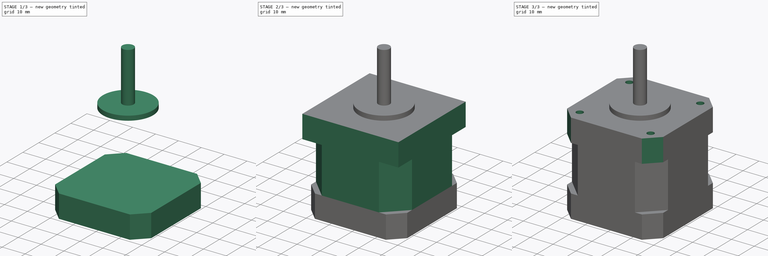
[diagram: build sequence overview — one tinted view per stage of 3, left to right]
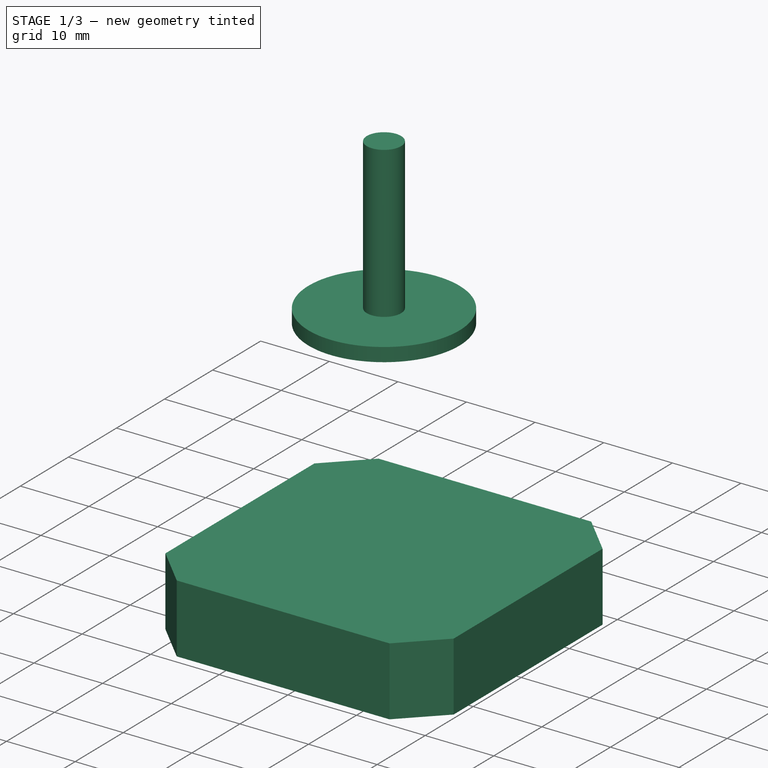
[diagram: stage 1 of 3 — iso view after this stage's code; geometry added in this stage tinted green]
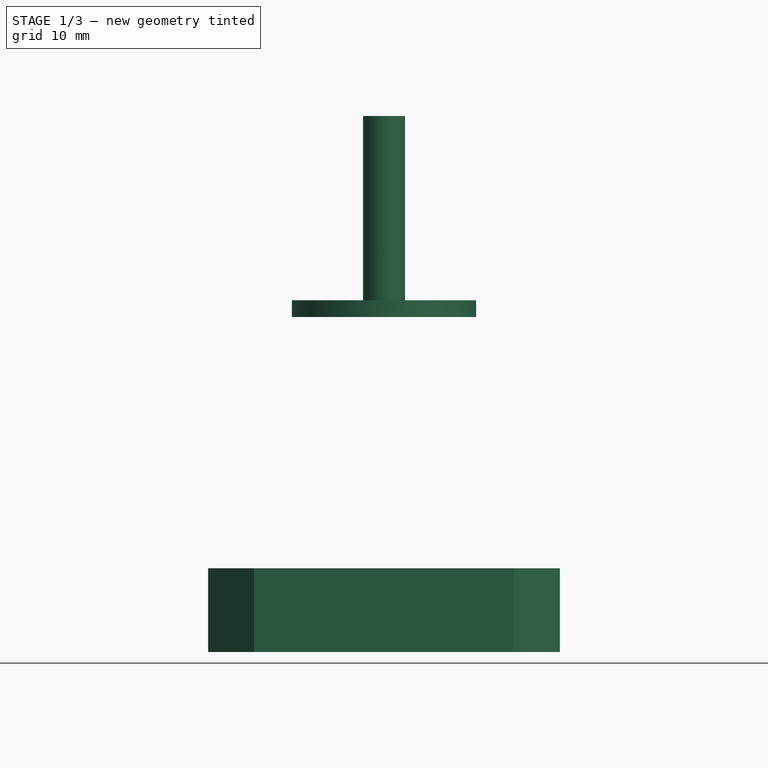
[diagram: stage 1 of 3 — front view after this stage's code; geometry added in this stage tinted green]
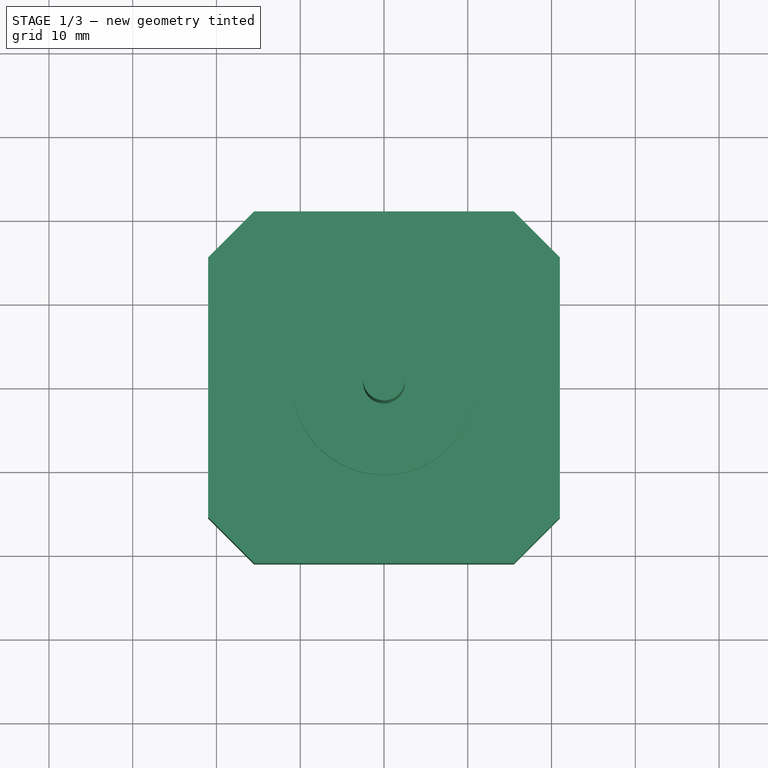
[diagram: stage 1 of 3 — top view after this stage's code; geometry added in this stage tinted green]
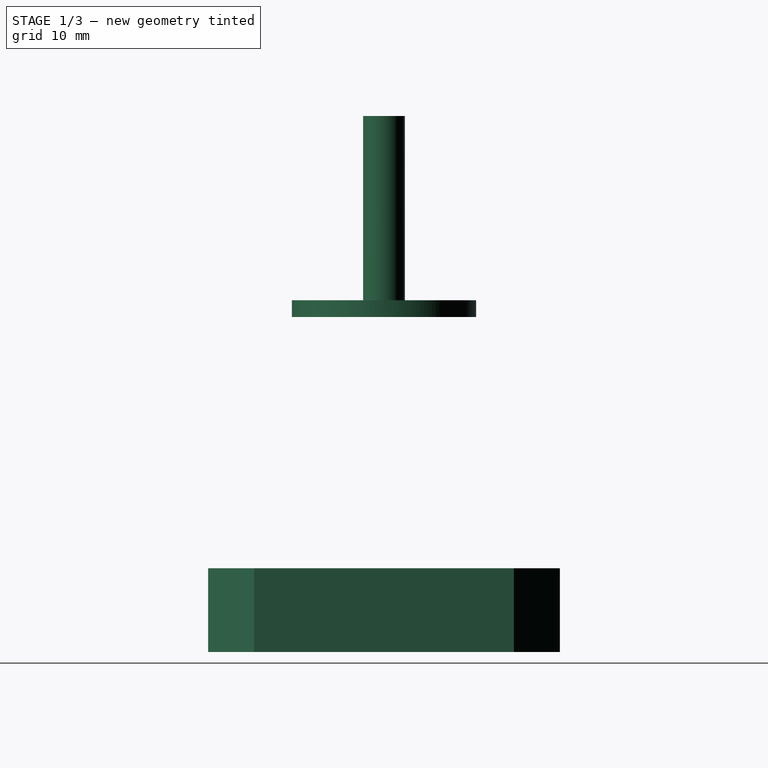
[diagram: stage 1 of 3 — right view after this stage's code; geometry added in this stage tinted green]
FCSTD DOCUMENT  (FreeCAD 1.0R39319 (Git))
Label: Nema17-Motor
License: CC-BY 3.0
LicenseURL: http://creativecommons.org/licenses/by/3.0/
objects: Sketcher::SketchObject×6, PartDesign::Pad×5, PartDesign::Body×2, PartDesign::Chamfer×1, PartDesign::Pocket×1, PartDesign::PolarPattern×1
note: 37 computed .brp shape members not serialized (recipe doc carries the construction recipe); baked Part::Feature solids carry a one-line shape summary decoded from their .brp

FEATURE [Sketcher::SketchObject] Sketch
  ArcFitTolerance = 0
  AttachmentSupport = -> [XY_Plane]
  FullyConstrained = true
  MakeInternals = false
  MapMode = 5
  sketch-geometry (8):
    g0: LineSegment StartX=-21 StartY=15.5 StartZ=0 EndX=-21 EndY=-15.5 EndZ=0
    g1: LineSegment StartX=-21 StartY=-15.5 StartZ=0 EndX=-15.5 EndY=-21 EndZ=0
    g2: LineSegment StartX=-15.5 StartY=-21 StartZ=0 EndX=15.5 EndY=-21 EndZ=0
    g3: LineSegment StartX=15.5 StartY=-21 StartZ=0 EndX=21 EndY=-15.5 EndZ=0
    g4: LineSegment StartX=21 StartY=-15.5 StartZ=0 EndX=21 EndY=15.5 EndZ=0
    g5: LineSegment StartX=21 StartY=15.5 StartZ=0 EndX=15.5 EndY=21 EndZ=0
    g6: LineSegment StartX=15.5 StartY=21 StartZ=0 EndX=-15.5 EndY=21 EndZ=0
    g7: LineSegment StartX=-15.5 StartY=21 StartZ=0 EndX=-21 EndY=15.5 EndZ=0
  constraints (22):
    c: Vertical(g0)
    c: Coincident(g0,g1)
    c: Coincident(g1,g2)
    c: Horizontal(g2)
    c: Coincident(g2,g3)
    c: Coincident(g3,g4)
    c: Vertical(g4)
    c: Coincident(g4,g5)
    c: Coincident(g5,g6)
    c: Horizontal(g6)
    c: Coincident(g6,g7)
    c: Coincident(g7,g0)
    c: Equal(g6,g2)
    c: Equal(g0,g4)
    c: Symmetric(g0,g3,g-1)
    c: Horizontal(g0,g4)
    c: Symmetric(g5,g1,g-1)
    c: Vertical(g5,g2)
    c: DistanceX(g0,g4) = 42
    c: DistanceY(g1,g6) = 42
    c: DistanceX(g6,g6) = 31
    c: DistanceY(g0,g0) = 31
FEATURE [PartDesign::Pad] Pad
  AllowMultiFace = false
  Direction = (0,0,1)
  Length = 10
  Length2 = 100
  Profile = -> Sketch
  Reversed = true
  Suppressed = false
  Type = 0
FEATURE [PartDesign::Body] Body
  AllowCompound = false
  Group = -> [Sketch,Pad,Sketch001,Pad001,Sketch002,Pad002,Chamfer,Sketch003,Pocket,PolarPattern]
  Origin = -> Origin
  Tip = -> PolarPattern
FEATURE [Sketcher::SketchObject] Sketch004
  ArcFitTolerance = 0
  FullyConstrained = true
  MakeInternals = false
  MapMode = 5
  Placement = pos=(0,0,30) rot=(0,0,1;0rad)
  sketch-geometry (1):
    g0: Circle CenterX=0 CenterY=0 CenterZ=0 NormalX=0 NormalY=0 NormalZ=1 AngleXU=0 Radius=11
  constraints (2):
    c: Coincident(g0,g-1)
    c: Diameter(g0) = 22
FEATURE [PartDesign::Pad] Pad003
  AllowMultiFace = false
  Direction = (0,0,1)
  Length = 2
  Length2 = 100
  Placement = pos=(0,0,30) rot=(0,0,1;0rad)
  Profile = -> Sketch004
  Suppressed = false
  Type = 0
FEATURE [Sketcher::SketchObject] Sketch005
  ArcFitTolerance = 0
  AttachmentSupport = -> [Pad003]
  FullyConstrained = true
  MakeInternals = false
  MapMode = 5
  Placement = pos=(0,0,32) rot=(0,0,1;0rad)
  sketch-geometry (1):
    g0: Circle CenterX=0 CenterY=0 CenterZ=0 NormalX=0 NormalY=0 NormalZ=1 AngleXU=0 Radius=2.5
  constraints (2):
    c: Coincident(g0,g-1)
    c: Diameter(g0) = 5
FEATURE [PartDesign::Pad] Pad004
  AllowMultiFace = false
  BaseFeature = -> Pad003
  Direction = (0,0,1)
  Length = 22
  Length2 = 100
  Placement = pos=(0,0,30) rot=(0,0,1;0rad)
  Profile = -> Sketch005
  Suppressed = false
  Type = 0
FEATURE [PartDesign::Body] Body001
  AllowCompound = false
  Group = -> [Sketch004,Pad003,Sketch005,Pad004]
  Origin = -> Origin001
  Tip = -> Pad004
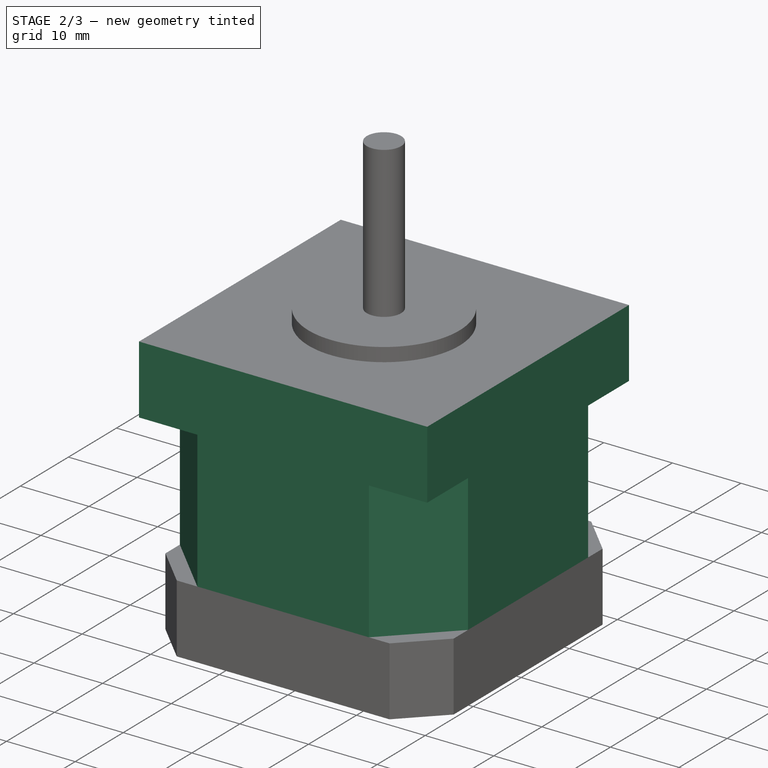
[diagram: stage 2 of 3 — iso view after this stage's code; geometry added in this stage tinted green]
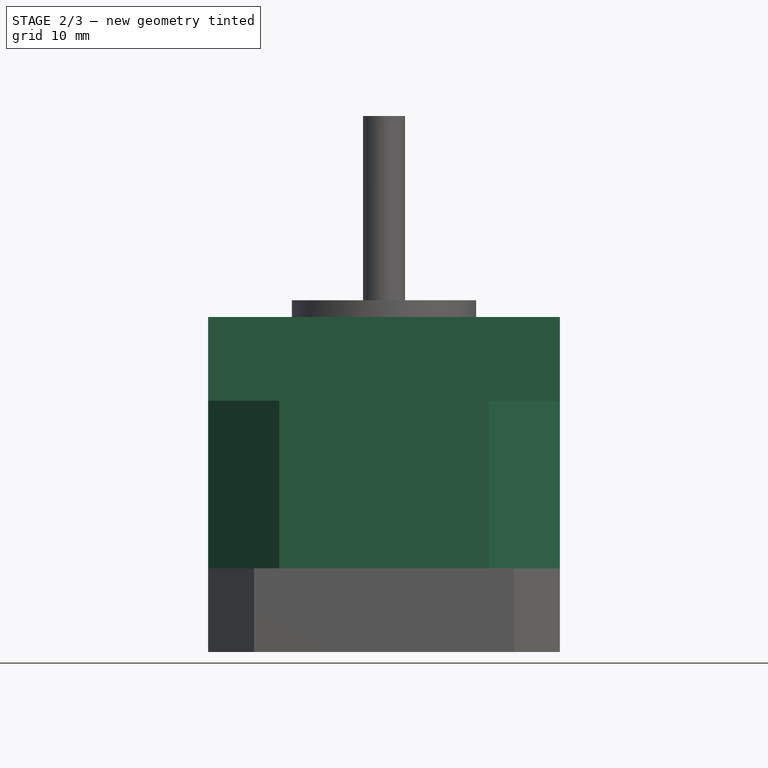
[diagram: stage 2 of 3 — front view after this stage's code; geometry added in this stage tinted green]
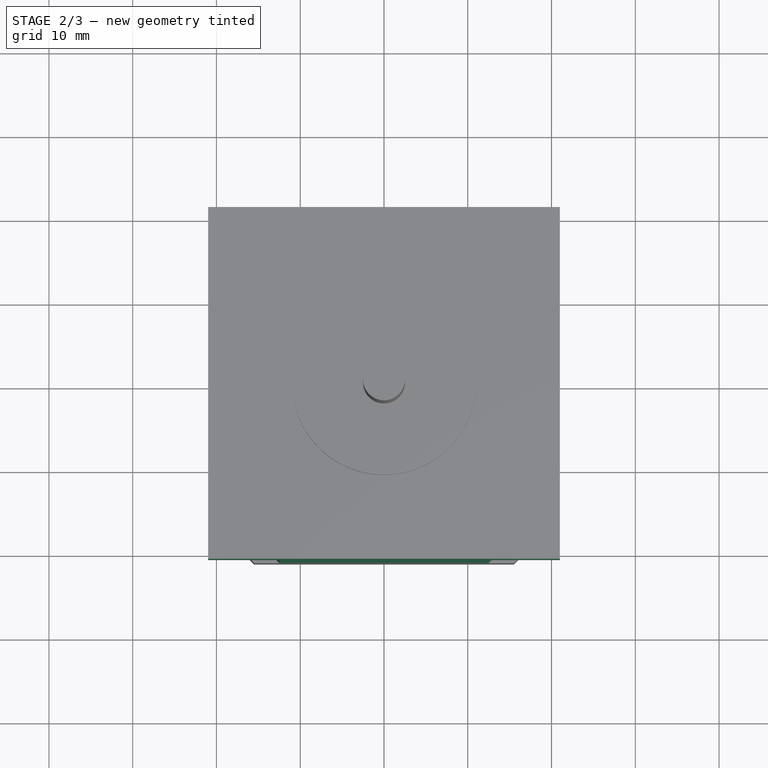
[diagram: stage 2 of 3 — top view after this stage's code; geometry added in this stage tinted green]
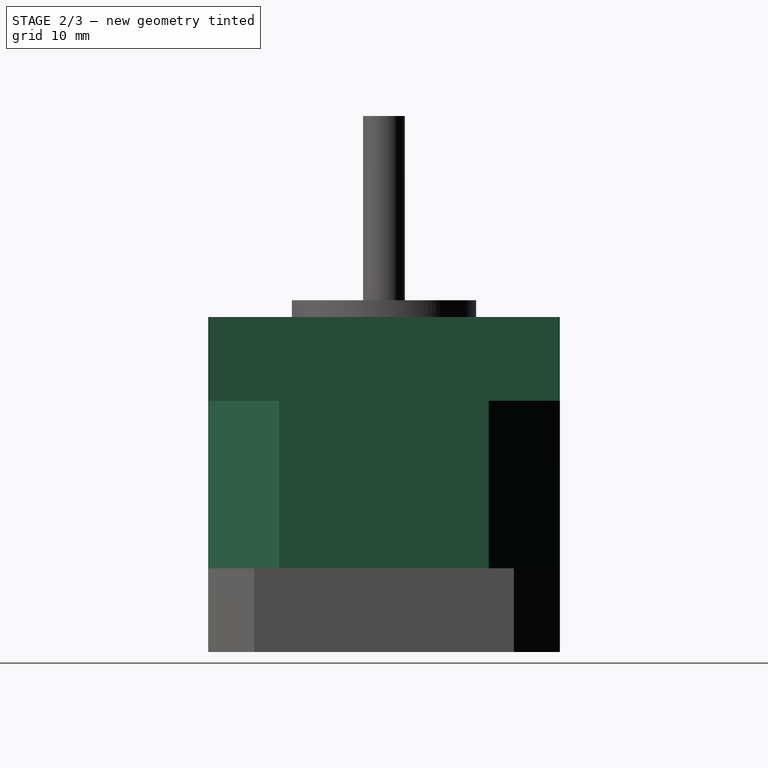
[diagram: stage 2 of 3 — right view after this stage's code; geometry added in this stage tinted green]
FEATURE [Sketcher::SketchObject] Sketch001
  ArcFitTolerance = 0
  AttachmentSupport = -> [Pad]
  FullyConstrained = true
  MakeInternals = false
  MapMode = 5
  sketch-geometry (8):
    g0: LineSegment StartX=-21 StartY=12.5 StartZ=0 EndX=-21 EndY=-12.5 EndZ=0
    g1: LineSegment StartX=-21 StartY=-12.5 StartZ=0 EndX=-12.5 EndY=-21 EndZ=0
    g2: LineSegment StartX=-12.5 StartY=-21 StartZ=0 EndX=12.5 EndY=-21 EndZ=0
    g3: LineSegment StartX=12.5 StartY=-21 StartZ=0 EndX=21 EndY=-12.5 EndZ=0
    g4: LineSegment StartX=21 StartY=-12.5 StartZ=0 EndX=21 EndY=12.5 EndZ=0
    g5: LineSegment StartX=21 StartY=12.5 StartZ=0 EndX=12.5 EndY=21 EndZ=0
    g6: LineSegment StartX=12.5 StartY=21 StartZ=0 EndX=-12.5 EndY=21 EndZ=0
    g7: LineSegment StartX=-12.5 StartY=21 StartZ=0 EndX=-21 EndY=12.5 EndZ=0
  constraints (22):
    c: Vertical(g0)
    c: Coincident(g0,g1)
    c: Coincident(g1,g2)
    c: Horizontal(g2)
    c: Coincident(g2,g3)
    c: Coincident(g3,g4)
    c: Vertical(g4)
    c: Coincident(g4,g5)
    c: Coincident(g5,g6)
    c: Coincident(g6,g7)
    c: Coincident(g7,g0)
    c: Horizontal(g6)
    c: Symmetric(g0,g4,g-1)
    c: Horizontal(g0,g4)
    c: Symmetric(g6,g2,g-1)
    c: Vertical(g1,g6)
    c: Equal(g2,g6)
    c: Equal(g0,g4)
    c: DistanceX(g0,g4) = 42
    c: DistanceY(g1,g6) = 42
    c: DistanceY(g0,g0) = 25
    c: DistanceX(g6,g6) = 25
FEATURE [PartDesign::Pad] Pad001
  AllowMultiFace = false
  BaseFeature = -> Pad
  Direction = (0,0,1)
  Length = 20
  Length2 = 100
  Profile = -> Sketch001
  Suppressed = false
  Type = 0
FEATURE [Sketcher::SketchObject] Sketch002
  ArcFitTolerance = 0
  AttachmentSupport = -> [Pad001]
  FullyConstrained = true
  MakeInternals = false
  MapMode = 5
  Placement = pos=(0,0,20) rot=(0,0,1;0rad)
  sketch-geometry (4):
    g0: LineSegment StartX=-21 StartY=21 StartZ=0 EndX=21 EndY=21 EndZ=0
    g1: LineSegment StartX=21 StartY=21 StartZ=0 EndX=21 EndY=-21 EndZ=0
    g2: LineSegment StartX=21 StartY=-21 StartZ=0 EndX=-21 EndY=-21 EndZ=0
    g3: LineSegment StartX=-21 StartY=-21 StartZ=0 EndX=-21 EndY=21 EndZ=0
  constraints (11):
    c: Coincident(g0,g1)
    c: Coincident(g1,g2)
    c: Coincident(g2,g3)
    c: Coincident(g3,g0)
    c: Horizontal(g0)
    c: Horizontal(g2)
    c: Vertical(g1)
    c: Vertical(g3)
    c: Symmetric(g0,g1,g-1)
    c: DistanceX(g0,g0) = 42
    c: DistanceY(g3,g3) = 42
FEATURE [PartDesign::Pad] Pad002
  AllowMultiFace = false
  BaseFeature = -> Pad001
  Direction = (0,0,1)
  Length = 10
  Length2 = 100
  Profile = -> Sketch002
  Suppressed = false
  Type = 0
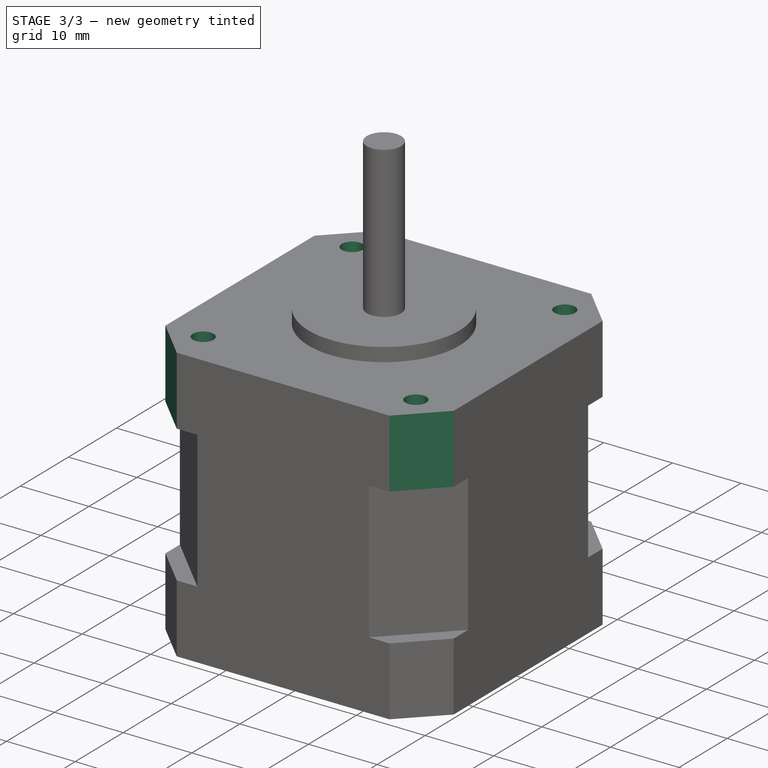
[diagram: stage 3 of 3 — iso view after this stage's code; geometry added in this stage tinted green]
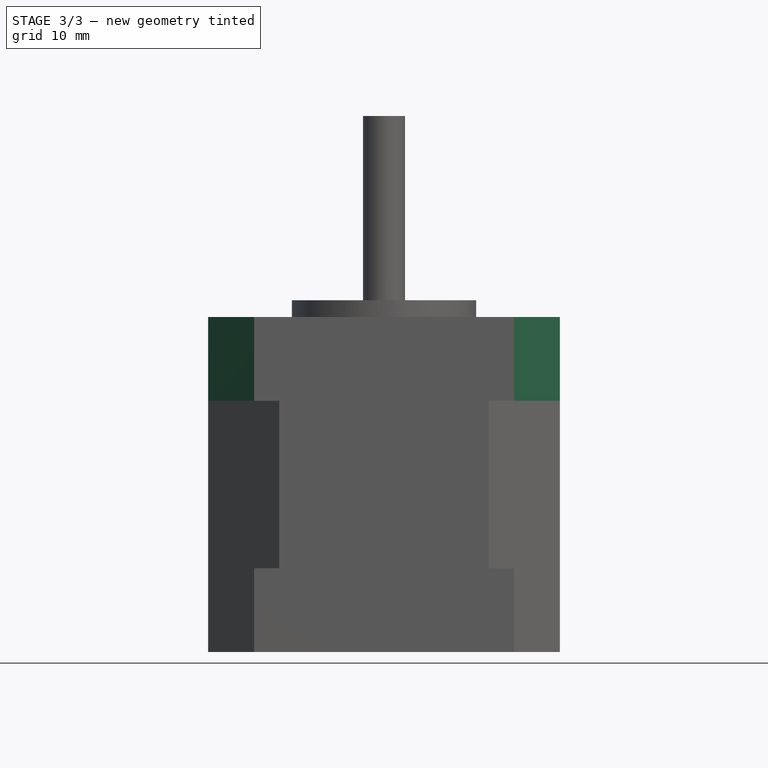
[diagram: stage 3 of 3 — front view after this stage's code; geometry added in this stage tinted green]
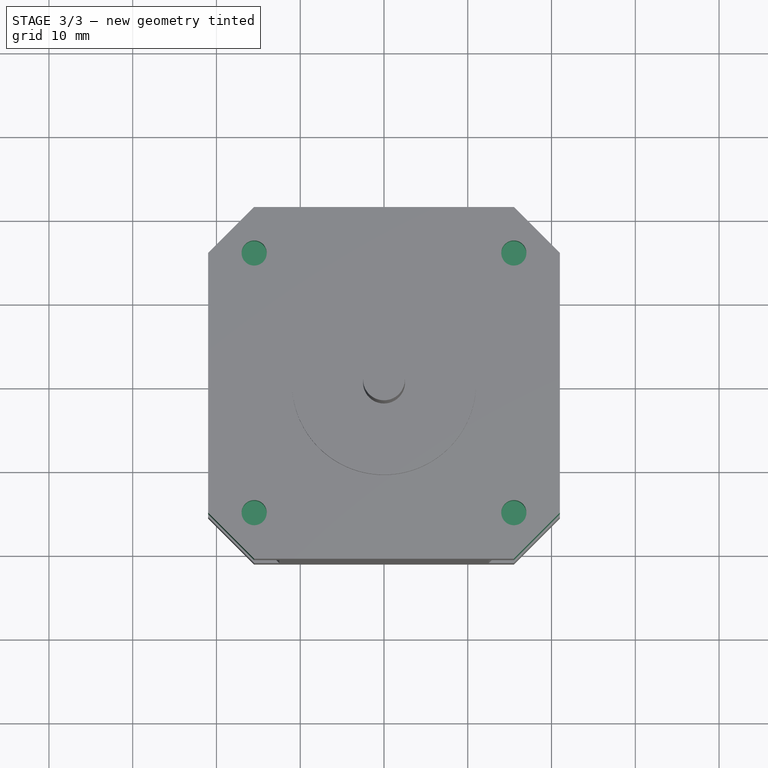
[diagram: stage 3 of 3 — top view after this stage's code; geometry added in this stage tinted green]
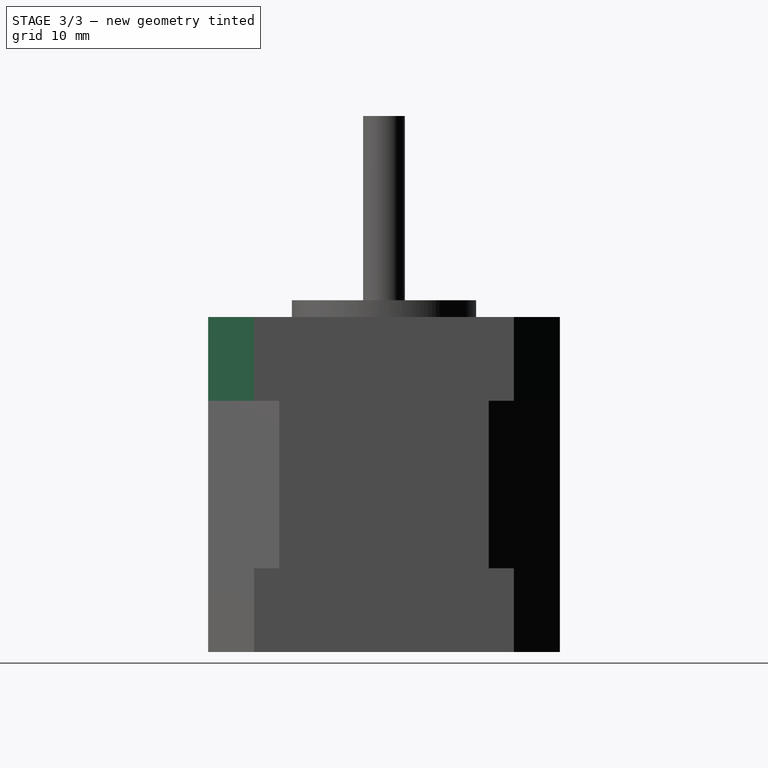
[diagram: stage 3 of 3 — right view after this stage's code; geometry added in this stage tinted green]
FEATURE [PartDesign::Chamfer] Chamfer
  Angle = 45
  Base = -> Pad002 [Edge12,Edge2,Edge1,Edge7]
  BaseFeature = -> Pad002
  ChamferType = 0
  FlipDirection = false
  Refine = true
  Size = 5.5
  Size2 = 1
  SupportTransform = false
  Suppressed = false
  UseAllEdges = false
FEATURE [Sketcher::SketchObject] Sketch003
  ArcFitTolerance = 0
  AttachmentSupport = -> [Chamfer]
  FullyConstrained = false
  MakeInternals = false
  MapMode = 5
  Placement = pos=(0,0,30) rot=(0,0,1;0rad)
  sketch-geometry (1):
    g0: Circle CenterX=15.5 CenterY=15.5 CenterZ=0 NormalX=0 NormalY=0 NormalZ=1 AngleXU=0 Radius=1.5
  constraints (3):
    c: Diameter(g0) = 3
    c: DistanceX(g-1,g0) = 15.5
    c: DistanceY(g0) = 15.5
FEATURE [PartDesign::Pocket] Pocket
  AllowMultiFace = false
  BaseFeature = -> Chamfer
  Direction = (1,1,1)
  Length = 5
  Length2 = 100
  Profile = -> Sketch003
  Suppressed = false
  Type = 0
FEATURE [PartDesign::PolarPattern] PolarPattern
  Angle = 360
  Axis = -> Sketch003 [N_Axis]
  BaseFeature = -> Pocket
  Mode = 0
  Occurrences = 4
  Offset = 120
  Originals = -> [Pocket]
  Suppressed = false
  TransformMode = 0
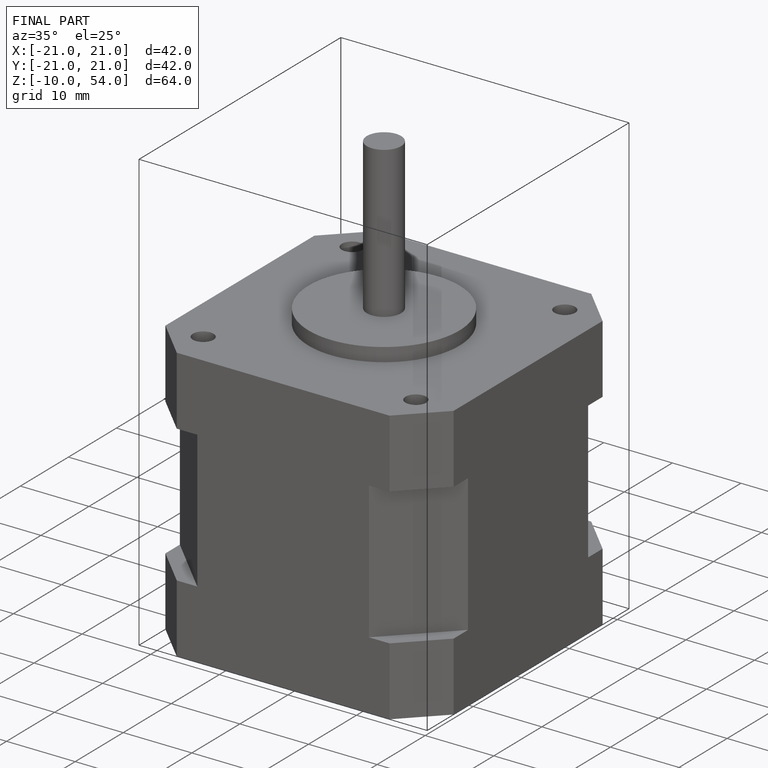
[diagram: finished part — iso view with bounding-box wireframe]
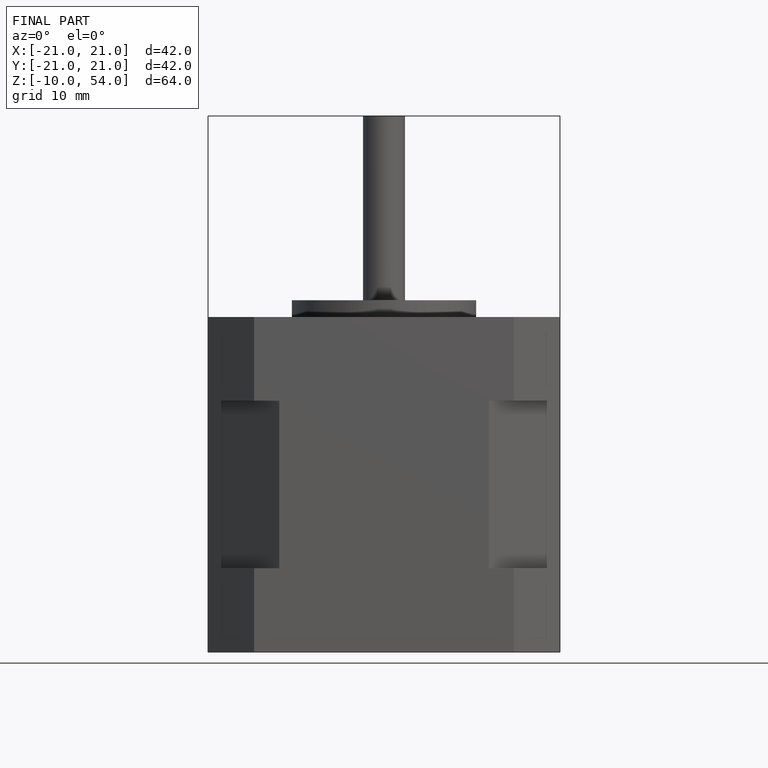
[diagram: finished part — front view with bounding-box wireframe]
